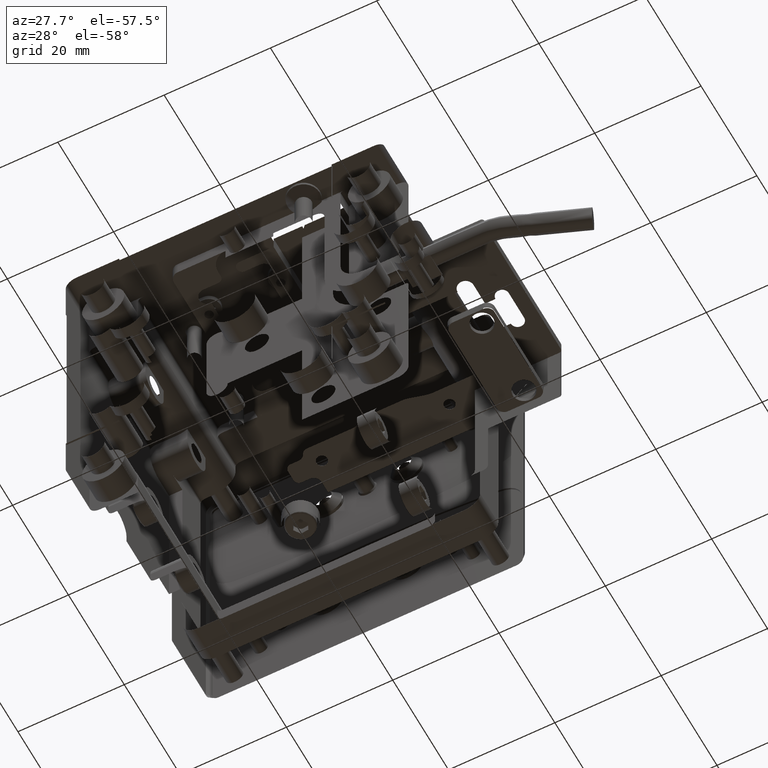
[diagram: clean part render]
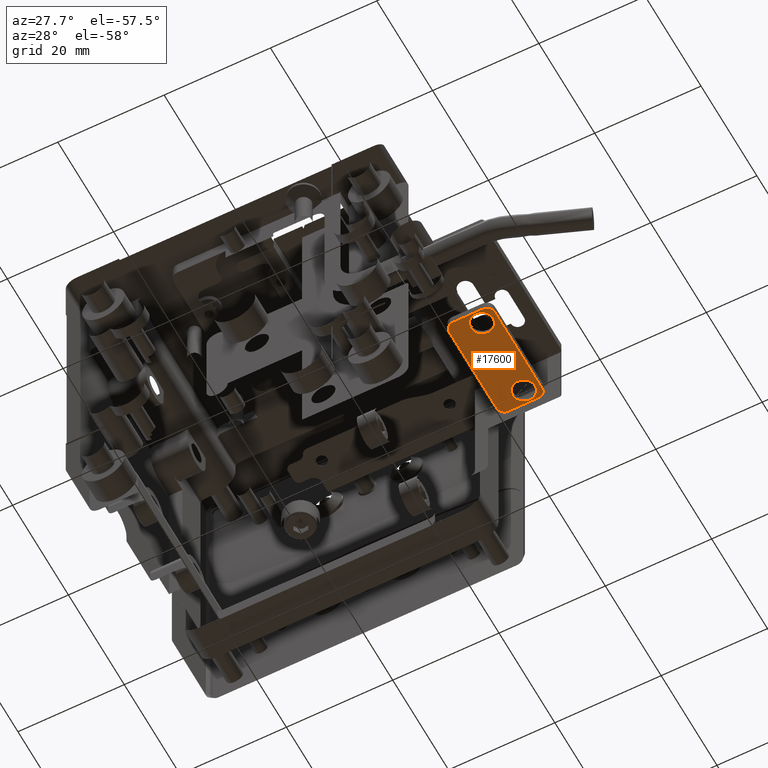
[diagram: same view with one face highlighted and labeled with its STEP entity id]
A machine part, auxiliary view. The second image highlights one B-rep face of the part: STEP entity #17600.
In plain terms, the highlighted planar face has unit normal (0, 0, -1).
Its self-contained STEP definition (entity closure, byte-faithful):
#26 = ORIENTED_EDGE ( 'NONE', *, *, #2263, .T. ) ;
#168 = CARTESIAN_POINT ( 'NONE',  ( 41.58074674744172228, 16.30524068629861745, -7.900000000000000355 ) ) ;
#298 = CARTESIAN_POINT ( 'NONE',  ( 33.93191611742592784, 35.23214908127840772, -7.900000000000003908 ) ) ;
#430 = ORIENTED_EDGE ( 'NONE', *, *, #26342, .T. ) ;
#447 = CARTESIAN_POINT ( 'NONE',  ( 41.68190927946695723, 16.56799485263471894, -7.900000000000003908 ) ) ;
#476 = DIRECTION ( 'NONE',  ( -1.000000000000000000, 0.000000000000000000, 0.000000000000000000 ) ) ;
#517 = VERTEX_POINT ( 'NONE', #605 ) ;
#541 = CIRCLE ( 'NONE', #17104, 2.099999999999997868 ) ;
#605 = CARTESIAN_POINT ( 'NONE',  ( 33.19999999999829754, 33.99999999999993605, -7.900000000000000355 ) ) ;
#976 = DIRECTION ( 'NONE',  ( 0.000000000000000000, 1.000000000000000000, 0.000000000000000000 ) ) ;
#1366 = CIRCLE ( 'NONE', #18402, 2.099999999999997868 ) ;
#1382 = EDGE_CURVE ( 'NONE', #17644, #14514, #1366, .T. ) ;
#1436 = VERTEX_POINT ( 'NONE', #20338 ) ;
#2141 = EDGE_LOOP ( 'NONE', ( #5228, #430 ) ) ;
#2207 = CARTESIAN_POINT ( 'NONE',  ( 40.34999999999909903, 35.39999999999994174, -7.900000000000000355 ) ) ;
#2263 = EDGE_CURVE ( 'NONE', #26919, #1436, #13729, .T. ) ;
#2529 = CARTESIAN_POINT ( 'NONE',  ( 33.78871240153284106, 35.14834537635363176, -7.900000000000000355 ) ) ;
#2572 = DIRECTION ( 'NONE',  ( 0.000000000000000000, 0.000000000000000000, 1.000000000000000000 ) ) ;
#2677 = CARTESIAN_POINT ( 'NONE',  ( 41.47633210242122459, 16.14653806830174076, -7.900000000000000355 ) ) ;
#2722 = EDGE_LOOP ( 'NONE', ( #15259, #13603 ) ) ;
#2727 = VERTEX_POINT ( 'NONE', #5378 ) ;
#2786 = CARTESIAN_POINT ( 'NONE',  ( 34.59999999999829612, 16.99999999999993605, -7.900000000000000355 ) ) ;
#2793 = AXIS2_PLACEMENT_3D ( 'NONE', #13942, #28402, #20890 ) ;
#2815 = CARTESIAN_POINT ( 'NONE',  ( 40.90999877314754940, 15.71664240806607360, -7.900000000000000355 ) ) ;
#2950 = EDGE_CURVE ( 'NONE', #17545, #13236, #15907, .T. ) ;
#3054 = B_SPLINE_CURVE_WITH_KNOTS ( 'NONE', 3,
 ( #25186, #20872, #27129, #27407, #6826, #25037, #4738, #13760, #22810, #16141, #2529, #298, #9327, #13926, #20732, #23244, #23402, #26049 ),
 .UNSPECIFIED., .F., .F.,
 ( 4, 1, 1, 2, 2, 2, 1, 1, 2, 2, 4 ),
 ( 0.000000000000000000, 0.1250000000000179023, 0.1875000000000268674, 0.2187500000000252298, 0.2500000000000235922, 0.5000000000000188738, 0.6250000000000196509, 0.6875000000000137668, 0.7187500000000107692, 0.7500000000000077716, 1.000000000000000000 ),
 .UNSPECIFIED. ) ;
#3211 = CARTESIAN_POINT ( 'NONE',  ( 40.94999999999910756, 32.99999999999992895, -7.900000000000000355 ) ) ;
#3271 = VERTEX_POINT ( 'NONE', #14336 ) ;
#3722 = CARTESIAN_POINT ( 'NONE',  ( 38.84999999999910614, 32.99999999999992895, -7.900000000000000355 ) ) ;
#4392 = CARTESIAN_POINT ( 'NONE',  ( 40.94999999999910756, 17.99999999999993250, -7.900000000000000355 ) ) ;
#4480 = CARTESIAN_POINT ( 'NONE',  ( 34.59999999999830322, 35.39999999999994174, -7.900000000000000355 ) ) ;
#4694 = CIRCLE ( 'NONE', #2793, 2.099999999999997868 ) ;
#4738 = CARTESIAN_POINT ( 'NONE',  ( 33.28942676925551325, 34.49290425334757515, -7.899999999999999467 ) ) ;
#4934 = VECTOR ( 'NONE', #976, 1000.000000000000000 ) ;
#5228 = ORIENTED_EDGE ( 'NONE', *, *, #1382, .T. ) ;
#5378 = CARTESIAN_POINT ( 'NONE',  ( 36.74999999999911182, 32.99999999999992895, -7.900000000000000355 ) ) ;
#5455 = CARTESIAN_POINT ( 'NONE',  ( 36.74999999999911182, 17.99999999999993250, -7.900000000000000355 ) ) ;
#5641 = AXIS2_PLACEMENT_3D ( 'NONE', #18905, #12511, #19336 ) ;
#5947 = DIRECTION ( 'NONE',  ( -1.000000000000000000, 0.000000000000000000, 0.000000000000000000 ) ) ;
#6365 = CARTESIAN_POINT ( 'NONE',  ( 40.84290425334653918, 35.31057323074278287, -7.900000000000000355 ) ) ;
#6631 = EDGE_CURVE ( 'NONE', #24697, #517, #11795, .T. ) ;
#6672 = EDGE_CURVE ( 'NONE', #13236, #22495, #12089, .T. ) ;
#6795 = AXIS2_PLACEMENT_3D ( 'NONE', #2786, #20847, #25454 ) ;
#6826 = CARTESIAN_POINT ( 'NONE',  ( 33.26809072053047345, 34.43200514736464157, -7.899999999999999467 ) ) ;
#6834 = CARTESIAN_POINT ( 'NONE',  ( 41.16128759846013452, 15.85165462364288302, -7.900000000000000355 ) ) ;
#6947 = CARTESIAN_POINT ( 'NONE',  ( 41.61348486615863607, 34.60364199863015244, -7.900000000000002132 ) ) ;
#6972 = CARTESIAN_POINT ( 'NONE',  ( 41.27175818927979378, 15.94180672535727972, -7.899999999999999467 ) ) ;
#7673 = DIRECTION ( 'NONE',  ( 0.000000000000000000, 0.000000000000000000, -1.000000000000000000 ) ) ;
#8868 = CARTESIAN_POINT ( 'NONE',  ( 40.57003428036822612, 35.38771295268587380, -7.900000000000000355 ) ) ;
#9202 = CARTESIAN_POINT ( 'NONE',  ( 40.34999999999909903, 15.59999999999993570, -7.900000000000000355 ) ) ;
#9310 = CARTESIAN_POINT ( 'NONE',  ( 41.71723454049492830, 34.34998308264668765, -7.900000000000000355 ) ) ;
#9327 = CARTESIAN_POINT ( 'NONE',  ( 33.99635800136703523, 35.26348486615892597, -7.900000000000000355 ) ) ;
#9333 = CARTESIAN_POINT ( 'NONE',  ( 40.52820555151338056, 15.59999999999993747, -7.900000000000000355 ) ) ;
#9627 = CARTESIAN_POINT ( 'NONE',  ( 34.59999999999829612, 15.59999999999993570, -7.900000000000000355 ) ) ;
#9632 = CARTESIAN_POINT ( 'NONE',  ( 41.73771295268502257, 16.77996571962920669, -7.900000000000000355 ) ) ;
#10002 = CARTESIAN_POINT ( 'NONE',  ( 34.59999999999829612, 15.59999999999993570, -7.900000000000000355 ) ) ;
#10368 = EDGE_CURVE ( 'NONE', #517, #26919, #3054, .T. ) ;
#10934 = CARTESIAN_POINT ( 'NONE',  ( 41.74999999999910472, 33.99999999999993605, -7.900000000000000355 ) ) ;
#11227 = CARTESIAN_POINT ( 'NONE',  ( 41.40819327464047461, 34.92175818928190267, -7.900000000000002132 ) ) ;
#11703 = CARTESIAN_POINT ( 'NONE',  ( 41.01808388256816329, 15.76785091871896860, -7.900000000000002132 ) ) ;
#11794 = CIRCLE ( 'NONE', #5641, 2.099999999999997868 ) ;
#11795 = LINE ( 'NONE', #23362, #4934 ) ;
#12089 = LINE ( 'NONE', #10002, #13915 ) ;
#12411 = ORIENTED_EDGE ( 'NONE', *, *, #2950, .T. ) ;
#12511 = DIRECTION ( 'NONE',  ( 0.000000000000000000, 0.000000000000000000, 1.000000000000000000 ) ) ;
#12660 = EDGE_CURVE ( 'NONE', #28921, #2727, #541, .T. ) ;
#13236 = VERTEX_POINT ( 'NONE', #16183 ) ;
#13597 = CARTESIAN_POINT ( 'NONE',  ( 41.63335759193238061, 34.55999877314896906, -7.900000000000002132 ) ) ;
#13603 = ORIENTED_EDGE ( 'NONE', *, *, #12660, .T. ) ;
#13729 = LINE ( 'NONE', #22941, #14976 ) ;
#13760 = CARTESIAN_POINT ( 'NONE',  ( 33.36925325255403862, 34.69475931369836985, -7.900000000000002132 ) ) ;
#13915 = VECTOR ( 'NONE', #18632, 1000.000000000000000 ) ;
#13926 = CARTESIAN_POINT ( 'NONE',  ( 34.04000122684868046, 35.28335759193290500, -7.900000000000000355 ) ) ;
#13932 = CARTESIAN_POINT ( 'NONE',  ( 40.69998308264226949, 15.63276545950413166, -7.900000000000000355 ) ) ;
#13942 = CARTESIAN_POINT ( 'NONE',  ( 38.84999999999910614, 32.99999999999992895, -7.900000000000000355 ) ) ;
#14336 = CARTESIAN_POINT ( 'NONE',  ( 41.74999999999910472, 33.99999999999993605, -7.900000000000000355 ) ) ;
#14343 = CARTESIAN_POINT ( 'NONE',  ( 34.59999999999829612, 16.99999999999993605, -7.900000000000000355 ) ) ;
#14514 = VERTEX_POINT ( 'NONE', #4392 ) ;
#14976 = VECTOR ( 'NONE', #22780, 1000.000000000000000 ) ;
#15259 = ORIENTED_EDGE ( 'NONE', *, *, #25942, .T. ) ;
#15391 = CARTESIAN_POINT ( 'NONE',  ( 41.58214908127839493, 34.66808388257067719, -7.900000000000000355 ) ) ;
#15526 = CARTESIAN_POINT ( 'NONE',  ( 40.43892440353957340, 35.39999999999994174, -7.900000000000002132 ) ) ;
#15865 = CARTESIAN_POINT ( 'NONE',  ( 40.88600128222867625, 15.70648774338857834, -7.900000000000002132 ) ) ;
#15907 = B_SPLINE_CURVE_WITH_KNOTS ( 'NONE', 3,
 ( #22522, #20605, #9632, #27278, #447, #18090, #27138, #168, #2677, #6972, #6834, #11703, #27571, #2815, #15865, #13932, #9333, #9202 ),
 .UNSPECIFIED., .F., .F.,
 ( 4, 1, 1, 2, 2, 2, 1, 1, 2, 2, 4 ),
 ( 0.000000000000000000, 0.1250000000000015821, 0.1875000000000023870, 0.2187500000000013878, 0.2500000000000003886, 0.5000000000000073275, 0.6250000000000107692, 0.6875000000000086597, 0.7187500000000076605, 0.7500000000000065503, 1.000000000000000000 ),
 .UNSPECIFIED. ) ;
#16141 = CARTESIAN_POINT ( 'NONE',  ( 33.67824181071508605, 35.05819327464068635, -7.900000000000002132 ) ) ;
#16183 = CARTESIAN_POINT ( 'NONE',  ( 40.34999999999909903, 15.59999999999993570, -7.900000000000000355 ) ) ;
#16416 = FACE_BOUND ( 'NONE', #2141, .T. ) ;
#17104 = AXIS2_PLACEMENT_3D ( 'NONE', #3722, #26251, #5947 ) ;
#17167 = AXIS2_PLACEMENT_3D ( 'NONE', #14343, #7673, #25597 ) ;
#17432 = EDGE_CURVE ( 'NONE', #1436, #3271, #28124, .T. ) ;
#17545 = VERTEX_POINT ( 'NONE', #23226 ) ;
#17600 = ADVANCED_FACE ( 'NONE', ( #21008, #16416, #25456 ), #27970, .T. ) ;
#17644 = VERTEX_POINT ( 'NONE', #5455 ) ;
#17772 = CARTESIAN_POINT ( 'NONE',  ( 40.71901152849147110, 35.35187573135316086, -7.900000000000000355 ) ) ;
#17907 = CARTESIAN_POINT ( 'NONE',  ( 41.04475931369912445, 35.23074674744386670, -7.900000000000002132 ) ) ;
#18090 = CARTESIAN_POINT ( 'NONE',  ( 41.66757439093384363, 16.52618883409384054, -7.899999999999999467 ) ) ;
#18131 = VECTOR ( 'NONE', #22901, 1000.000000000000000 ) ;
#18214 = CARTESIAN_POINT ( 'NONE',  ( 40.82381116590476466, 35.31757439093470907, -7.900000000000002132 ) ) ;
#18352 = CARTESIAN_POINT ( 'NONE',  ( 41.74999999999911182, 34.17820555151780582, -7.900000000000002132 ) ) ;
#18402 = AXIS2_PLACEMENT_3D ( 'NONE', #18558, #2572, #476 ) ;
#18488 = CARTESIAN_POINT ( 'NONE',  ( 33.19999999999829754, 16.99999999999993605, -7.900000000000000355 ) ) ;
#18558 = CARTESIAN_POINT ( 'NONE',  ( 38.84999999999910614, 17.99999999999993250, -7.900000000000000355 ) ) ;
#18632 = DIRECTION ( 'NONE',  ( -1.000000000000000000, 0.000000000000000000, -0.000000000000000000 ) ) ;
#18905 = CARTESIAN_POINT ( 'NONE',  ( 38.84999999999910614, 17.99999999999993250, -7.900000000000000355 ) ) ;
#19300 = ORIENTED_EDGE ( 'NONE', *, *, #6631, .T. ) ;
#19336 = DIRECTION ( 'NONE',  ( -1.000000000000000000, 0.000000000000000000, 0.000000000000000000 ) ) ;
#19831 = EDGE_LOOP ( 'NONE', ( #12411, #25718, #26634, #19300, #20789, #26, #28977, #23378 ) ) ;
#20338 = CARTESIAN_POINT ( 'NONE',  ( 40.34999999999909903, 35.39999999999994174, -7.900000000000000355 ) ) ;
#20605 = CARTESIAN_POINT ( 'NONE',  ( 41.74999999999909051, 16.91107559645855929, -7.899999999999999467 ) ) ;
#20732 = CARTESIAN_POINT ( 'NONE',  ( 34.06399871776926602, 35.29351225661130798, -7.900000000000000355 ) ) ;
#20789 = ORIENTED_EDGE ( 'NONE', *, *, #10368, .T. ) ;
#20847 = DIRECTION ( 'NONE',  ( -0.000000000000000000, -0.000000000000000000, -1.000000000000000000 ) ) ;
#20872 = CARTESIAN_POINT ( 'NONE',  ( 33.19999999999830465, 34.08892440354070175, -7.900000000000000355 ) ) ;
#20890 = DIRECTION ( 'NONE',  ( -1.000000000000000000, 0.000000000000000000, 0.000000000000000000 ) ) ;
#21008 = FACE_OUTER_BOUND ( 'NONE', #19831, .T. ) ;
#21569 = EDGE_CURVE ( 'NONE', #3271, #17545, #26893, .T. ) ;
#22495 = VERTEX_POINT ( 'NONE', #9627 ) ;
#22522 = CARTESIAN_POINT ( 'NONE',  ( 41.74999999999910472, 16.99999999999993605, -7.900000000000000355 ) ) ;
#22780 = DIRECTION ( 'NONE',  ( 1.000000000000000000, -0.000000000000000000, 0.000000000000000000 ) ) ;
#22810 = CARTESIAN_POINT ( 'NONE',  ( 33.47366789758127226, 34.85346193170196472, -7.900000000000000355 ) ) ;
#22901 = DIRECTION ( 'NONE',  ( -0.000000000000000000, -1.000000000000000000, -0.000000000000000000 ) ) ;
#22941 = CARTESIAN_POINT ( 'NONE',  ( 34.59999999999829612, 35.39999999999994174, -7.900000000000000355 ) ) ;
#23226 = CARTESIAN_POINT ( 'NONE',  ( 41.74999999999910472, 16.99999999999993605, -7.900000000000000355 ) ) ;
#23244 = CARTESIAN_POINT ( 'NONE',  ( 34.25001691735094056, 35.36723454049574400, -7.900000000000000355 ) ) ;
#23362 = CARTESIAN_POINT ( 'NONE',  ( 33.19999999999829754, 16.99999999999993605, -7.900000000000000355 ) ) ;
#23378 = ORIENTED_EDGE ( 'NONE', *, *, #21569, .T. ) ;
#23402 = CARTESIAN_POINT ( 'NONE',  ( 34.42179444847981529, 35.39999999999994884, -7.900000000000000355 ) ) ;
#24440 = CARTESIAN_POINT ( 'NONE',  ( 41.49834537635391030, 34.81128759846319554, -7.900000000000002132 ) ) ;
#24697 = VERTEX_POINT ( 'NONE', #18488 ) ;
#24737 = EDGE_CURVE ( 'NONE', #22495, #24697, #26657, .T. ) ;
#25015 = CARTESIAN_POINT ( 'NONE',  ( 40.78200514736356297, 35.33190927946779425, -7.900000000000000355 ) ) ;
#25037 = CARTESIAN_POINT ( 'NONE',  ( 33.28242560906354441, 34.47381116590575800, -7.900000000000000355 ) ) ;
#25186 = CARTESIAN_POINT ( 'NONE',  ( 33.19999999999829754, 33.99999999999993605, -7.900000000000000355 ) ) ;
#25454 = DIRECTION ( 'NONE',  ( 1.000000000000000000, 0.000000000000000000, 0.000000000000000000 ) ) ;
#25456 = FACE_BOUND ( 'NONE', #2722, .T. ) ;
#25597 = DIRECTION ( 'NONE',  ( -1.000000000000000000, 0.000000000000000000, -0.000000000000000000 ) ) ;
#25718 = ORIENTED_EDGE ( 'NONE', *, *, #6672, .T. ) ;
#25942 = EDGE_CURVE ( 'NONE', #2727, #28921, #4694, .T. ) ;
#26049 = CARTESIAN_POINT ( 'NONE',  ( 34.59999999999830322, 35.39999999999994174, -7.900000000000000355 ) ) ;
#26251 = DIRECTION ( 'NONE',  ( 0.000000000000000000, 0.000000000000000000, 1.000000000000000000 ) ) ;
#26342 = EDGE_CURVE ( 'NONE', #14514, #17644, #11794, .T. ) ;
#26634 = ORIENTED_EDGE ( 'NONE', *, *, #24737, .T. ) ;
#26657 = CIRCLE ( 'NONE', #6795, 1.399999999999998579 ) ;
#26893 = LINE ( 'NONE', #27045, #18131 ) ;
#26919 = VERTEX_POINT ( 'NONE', #4480 ) ;
#26945 = CARTESIAN_POINT ( 'NONE',  ( 41.64351225661047096, 34.53600128222906562, -7.900000000000002132 ) ) ;
#27045 = CARTESIAN_POINT ( 'NONE',  ( 41.74999999999910472, 16.99999999999993605, -7.900000000000000355 ) ) ;
#27129 = CARTESIAN_POINT ( 'NONE',  ( 33.21228704731237968, 34.22003428036961026, -7.900000000000000355 ) ) ;
#27138 = CARTESIAN_POINT ( 'NONE',  ( 41.66057323074209506, 16.50709574665265578, -7.900000000000000355 ) ) ;
#27252 = CARTESIAN_POINT ( 'NONE',  ( 41.20346193169984872, 35.12633210241948234, -7.899999999999999467 ) ) ;
#27278 = CARTESIAN_POINT ( 'NONE',  ( 41.70187573135231673, 16.63098847150634896, -7.900000000000000355 ) ) ;
#27407 = CARTESIAN_POINT ( 'NONE',  ( 33.24812426864509263, 34.36901152849270602, -7.900000000000002132 ) ) ;
#27571 = CARTESIAN_POINT ( 'NONE',  ( 40.95364199862824961, 15.73651513383933853, -7.900000000000002132 ) ) ;
#27970 = PLANE ( 'NONE',  #17167 ) ;
#28124 = B_SPLINE_CURVE_WITH_KNOTS ( 'NONE', 3,
 ( #2207, #15526, #8868, #17772, #25015, #18214, #6365, #17907, #27252, #11227, #24440, #15391, #6947, #13597, #26945, #9310, #18352, #10934 ),
 .UNSPECIFIED., .F., .F.,
 ( 4, 1, 1, 2, 2, 2, 1, 1, 2, 2, 4 ),
 ( 0.000000000000000000, 0.1250000000000205114, 0.1875000000000307532, 0.2187500000000345002, 0.2500000000000382472, 0.5000000000000632827, 0.6250000000000790479, 0.6875000000000804912, 0.7187500000000791589, 0.7500000000000778266, 1.000000000000000000 ),
 .UNSPECIFIED. ) ;
#28402 = DIRECTION ( 'NONE',  ( 0.000000000000000000, 0.000000000000000000, 1.000000000000000000 ) ) ;
#28921 = VERTEX_POINT ( 'NONE', #3211 ) ;
#28977 = ORIENTED_EDGE ( 'NONE', *, *, #17432, .T. ) ;